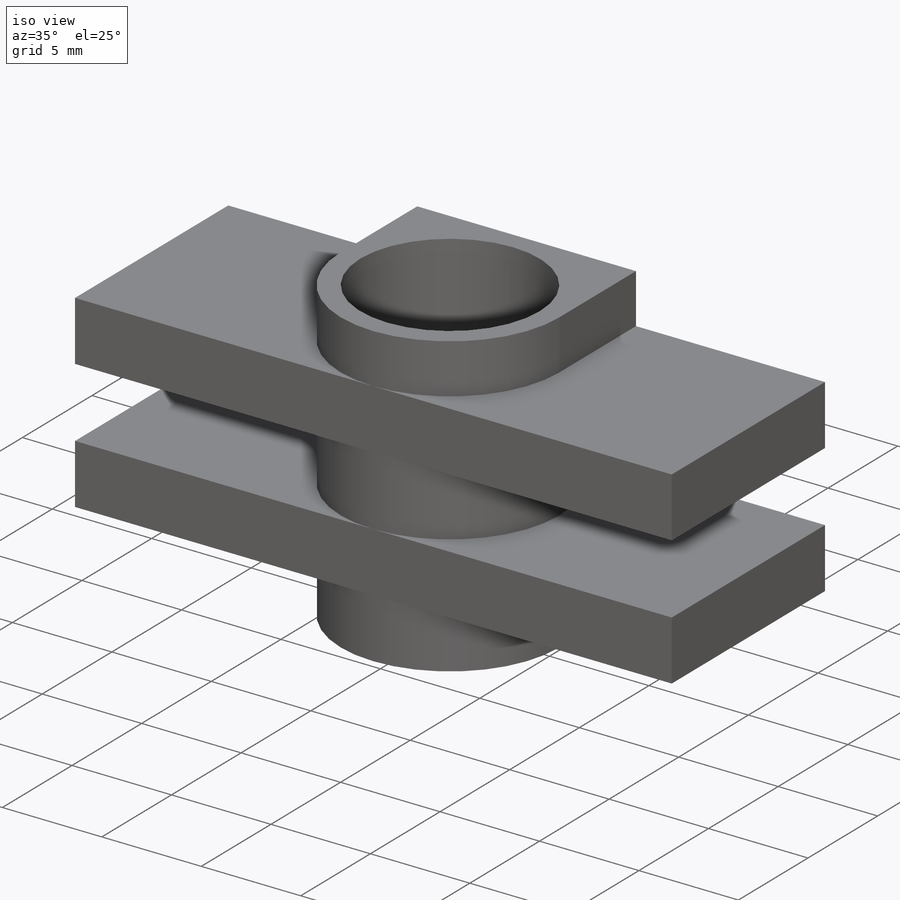
[diagram: iso view]
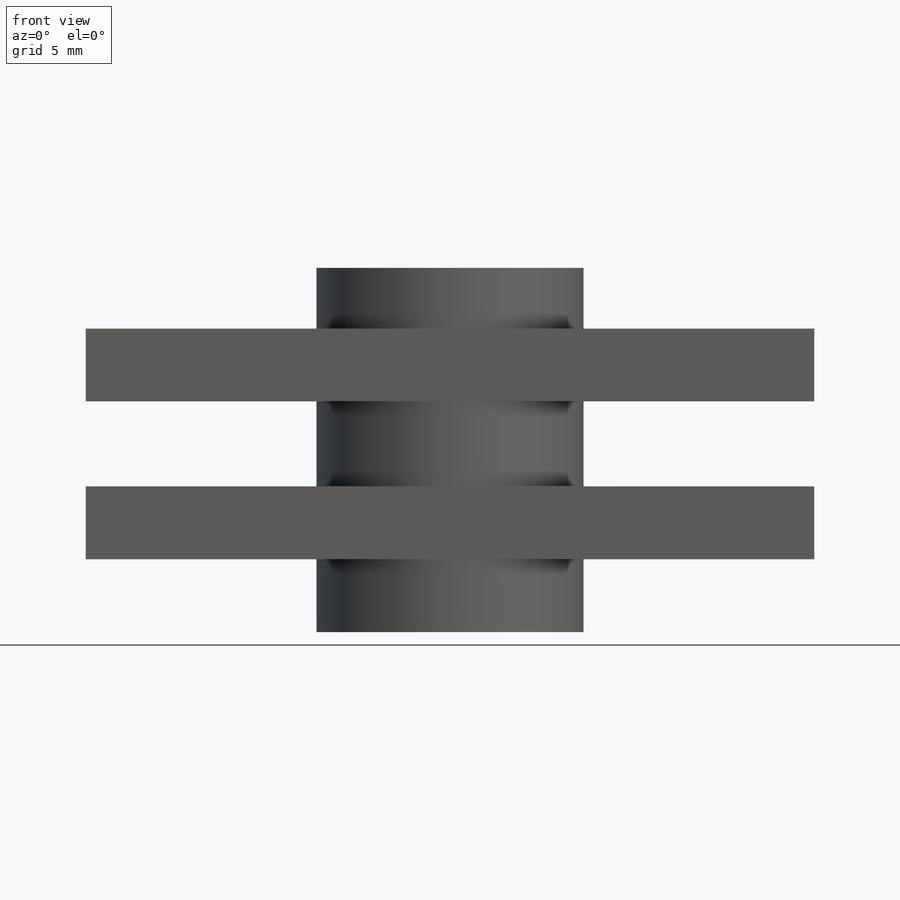
[diagram: front view]
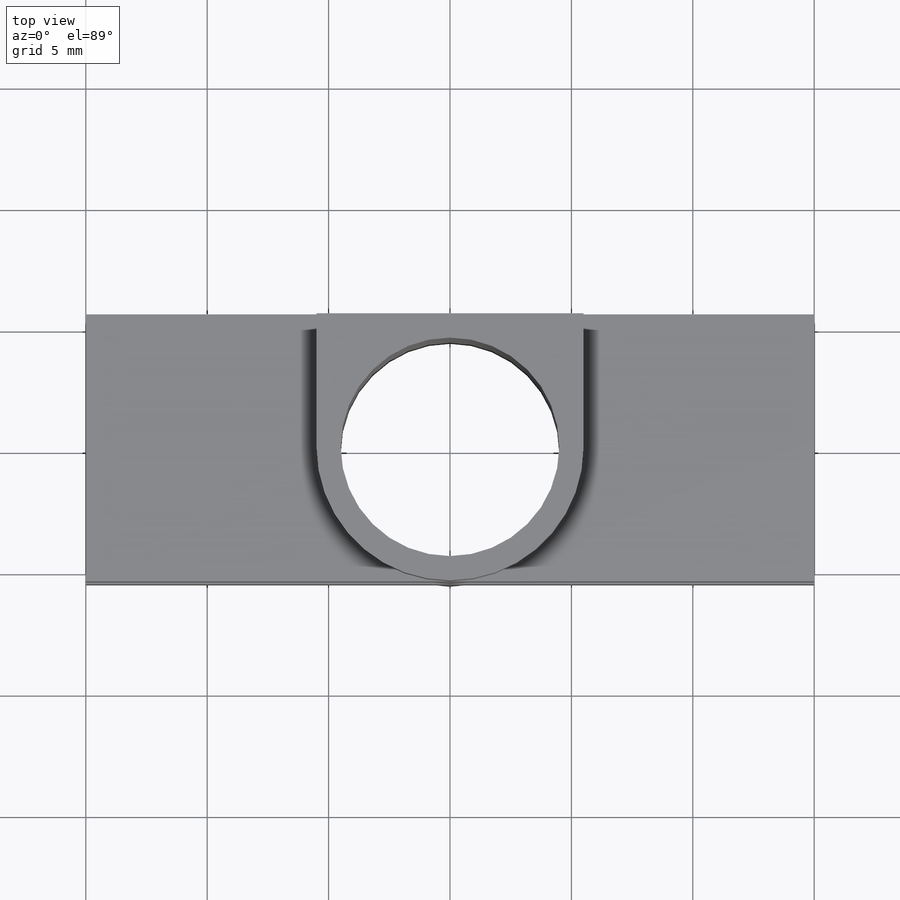
[diagram: top view]
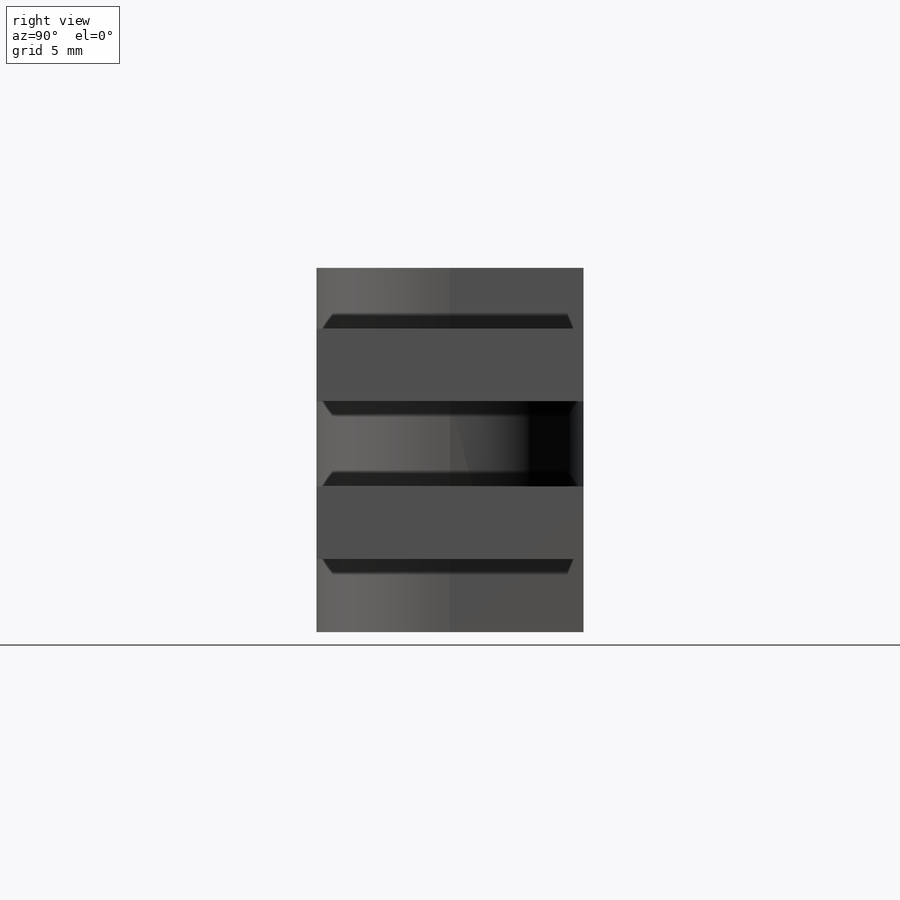
[diagram: right view]
SOLIDWORKS PART (.sldprt)
format: sldprt  version: not decoded by parser v0  size: 315,904 bytes
history: native  units: mm
features: sketch x4, plane x3, extrude x3, fillet x2, material x1, cut_extrude x1 (+9 scaffold rows collapsed)
feature tree (23):
  scaffold x9  (default folders/planes/origin — collapsed)
  material  "Material <sin especificar>"
  plane  "Alzado"
  plane  "Planta"
  plane  "Vista lateral"
  sketch  "Croquis1"  dims[c1.D1=9.0mm c1.D2=9.0mm c1.D3=5.5mm c2.D2=11.0mm c2.D3=5.5mm]
  extrude  "Saliente-Extruir1"  Depth=15mm
  sketch  "Croquis2"  dims[D1=30.0mm]
  extrude  "Saliente-Extruir2"  Depth=3mm
  sketch  "Croquis3"
  extrude  "Saliente-Extruir3"  Depth=3mm
  sketch  "Croquis4"  dims[D1=9.0mm]
  cut_extrude  "Cortar-Extruir1"  [1 undecoded]
  fillet  "Redondeo6"  Radius=5.5mm
  fillet  "Redondeo7"  Radius=5.5mm
decode coverage: 8 of 10 modeling features carry decoded parameters
note: 1 parameter value undecoded
note: suppression state not decoded; provenance and decode notes live in map.json
